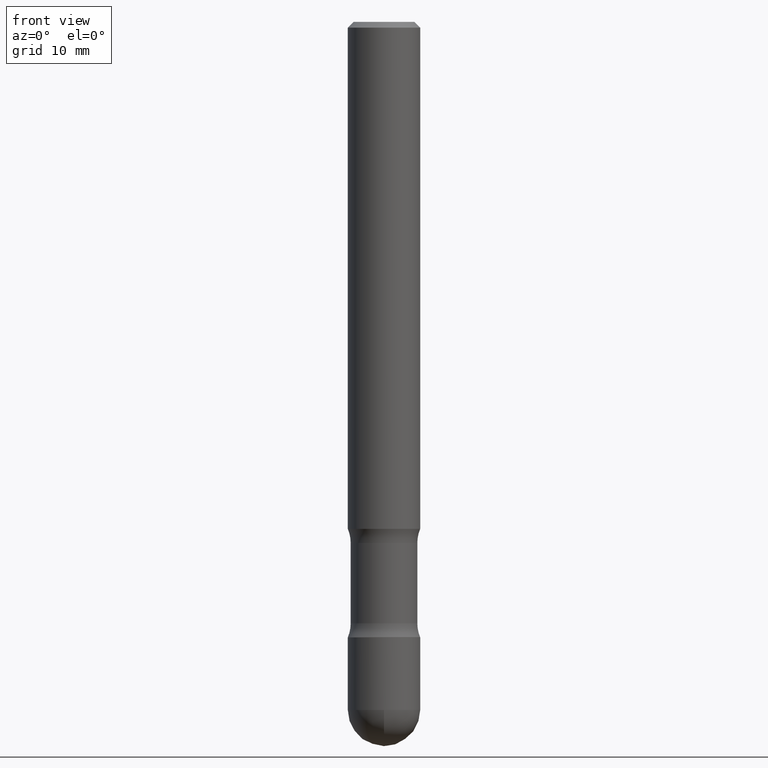
[diagram: clean part render]
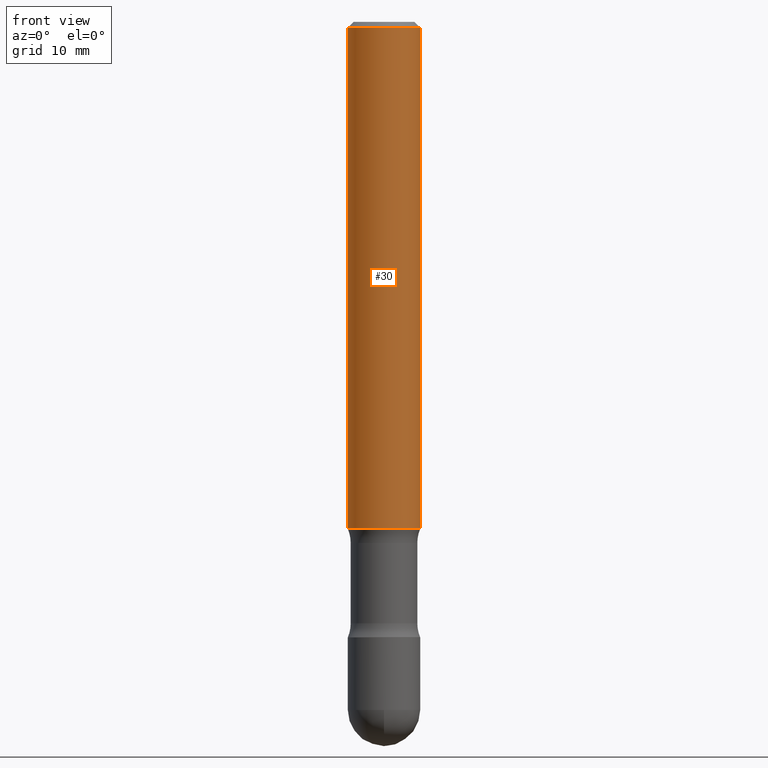
[diagram: same view with one face highlighted and labeled with its STEP entity id]
A machine part, front view. The second image highlights one B-rep face of the part: STEP entity #30.
In plain terms, the highlighted cylindrical surface (edge-blend (fillet) strip) has radius 3.175 mm, axis along (0, -0, -1).
Its self-contained STEP definition (entity closure, byte-faithful):
#9 = CIRCLE ( 'NONE', #82, 0.1249999999999999584 ) ;
#18 = ORIENTED_EDGE ( 'NONE', *, *, #43, .F. ) ;
#26 = VERTEX_POINT ( 'NONE', #134 ) ;
#30 = ADVANCED_FACE ( 'NONE', ( #87 ), #179, .T. ) ;
#33 = VECTOR ( 'NONE', #349, 39.37007874015748143 ) ;
#43 = EDGE_CURVE ( 'NONE', #389, #400, #9, .T. ) ;
#45 = CARTESIAN_POINT ( 'NONE',  ( 0.1249999999999999584, -3.947523234597624247E-15, -1.750000000000001776 ) ) ;
#48 = EDGE_CURVE ( 'NONE', #535, #26, #161, .T. ) ;
#82 = AXIS2_PLACEMENT_3D ( 'NONE', #341, #296, #466 ) ;
#87 = FACE_OUTER_BOUND ( 'NONE', #546, .T. ) ;
#107 = CARTESIAN_POINT ( 'NONE',  ( 4.890937612370288047E-31, -6.982962677686311331E-17, -0.02000000000000005940 ) ) ;
#134 = CARTESIAN_POINT ( 'NONE',  ( -0.1249999999999996253, 8.030407079339175754E-16, -0.02000000000000005940 ) ) ;
#138 = LINE ( 'NONE', #220, #193 ) ;
#139 = DIRECTION ( 'NONE',  ( 2.445468806185136597E-29, -3.491481338843145583E-15, -1.000000000000000000 ) ) ;
#161 = CIRCLE ( 'NONE', #469, 0.1249999999999996253 ) ;
#179 = CYLINDRICAL_SURFACE ( 'NONE', #557, 0.1249999999999997918 ) ;
#193 = VECTOR ( 'NONE', #442, 39.37007874015748143 ) ;
#220 = CARTESIAN_POINT ( 'NONE',  ( 0.1249999999999997918, -8.276960094763123491E-15, -2.125000000000000000 ) ) ;
#232 = ORIENTED_EDGE ( 'NONE', *, *, #48, .T. ) ;
#263 = LINE ( 'NONE', #382, #33 ) ;
#278 = DIRECTION ( 'NONE',  ( 2.445468806185136597E-29, -3.491481338843145583E-15, -1.000000000000000000 ) ) ;
#292 = CARTESIAN_POINT ( 'NONE',  ( 0.1249999999999996253, -9.273918764983019825E-16, -0.02000000000000005940 ) ) ;
#296 = DIRECTION ( 'NONE',  ( 2.445468806185136597E-29, -3.491481338843145583E-15, -1.000000000000000000 ) ) ;
#327 = DIRECTION ( 'NONE',  ( -1.000000000000000000, 6.982962677686266711E-15, 0.000000000000000000 ) ) ;
#332 = EDGE_CURVE ( 'NONE', #26, #400, #263, .T. ) ;
#341 = CARTESIAN_POINT ( 'NONE',  ( 4.279570410823993529E-29, -6.110092342975510982E-15, -1.750000000000001776 ) ) ;
#349 = DIRECTION ( 'NONE',  ( 2.445468806185136877E-29, -3.491481338843145188E-15, -1.000000000000000000 ) ) ;
#364 = DIRECTION ( 'NONE',  ( -1.000000000000000000, 6.982962677686266711E-15, 0.000000000000000000 ) ) ;
#382 = CARTESIAN_POINT ( 'NONE',  ( -0.1249999999999997918, -6.546527510330901862E-15, -2.125000000000000000 ) ) ;
#389 = VERTEX_POINT ( 'NONE', #45 ) ;
#399 = EDGE_CURVE ( 'NONE', #535, #389, #138, .T. ) ;
#400 = VERTEX_POINT ( 'NONE', #480 ) ;
#426 = ORIENTED_EDGE ( 'NONE', *, *, #332, .T. ) ;
#442 = DIRECTION ( 'NONE',  ( 2.445468806185136877E-29, -3.491481338843145188E-15, -1.000000000000000000 ) ) ;
#466 = DIRECTION ( 'NONE',  ( -1.000000000000000000, 6.982962677686265133E-15, 0.000000000000000000 ) ) ;
#469 = AXIS2_PLACEMENT_3D ( 'NONE', #107, #278, #364 ) ;
#480 = CARTESIAN_POINT ( 'NONE',  ( -0.1249999999999999584, -5.237222008264728432E-15, -1.750000000000001776 ) ) ;
#504 = ORIENTED_EDGE ( 'NONE', *, *, #399, .F. ) ;
#522 = CARTESIAN_POINT ( 'NONE',  ( 5.196621213143415268E-29, -7.419397845041683624E-15, -2.125000000000000000 ) ) ;
#535 = VERTEX_POINT ( 'NONE', #292 ) ;
#546 = EDGE_LOOP ( 'NONE', ( #504, #232, #426, #18 ) ) ;
#557 = AXIS2_PLACEMENT_3D ( 'NONE', #522, #139, #327 ) ;